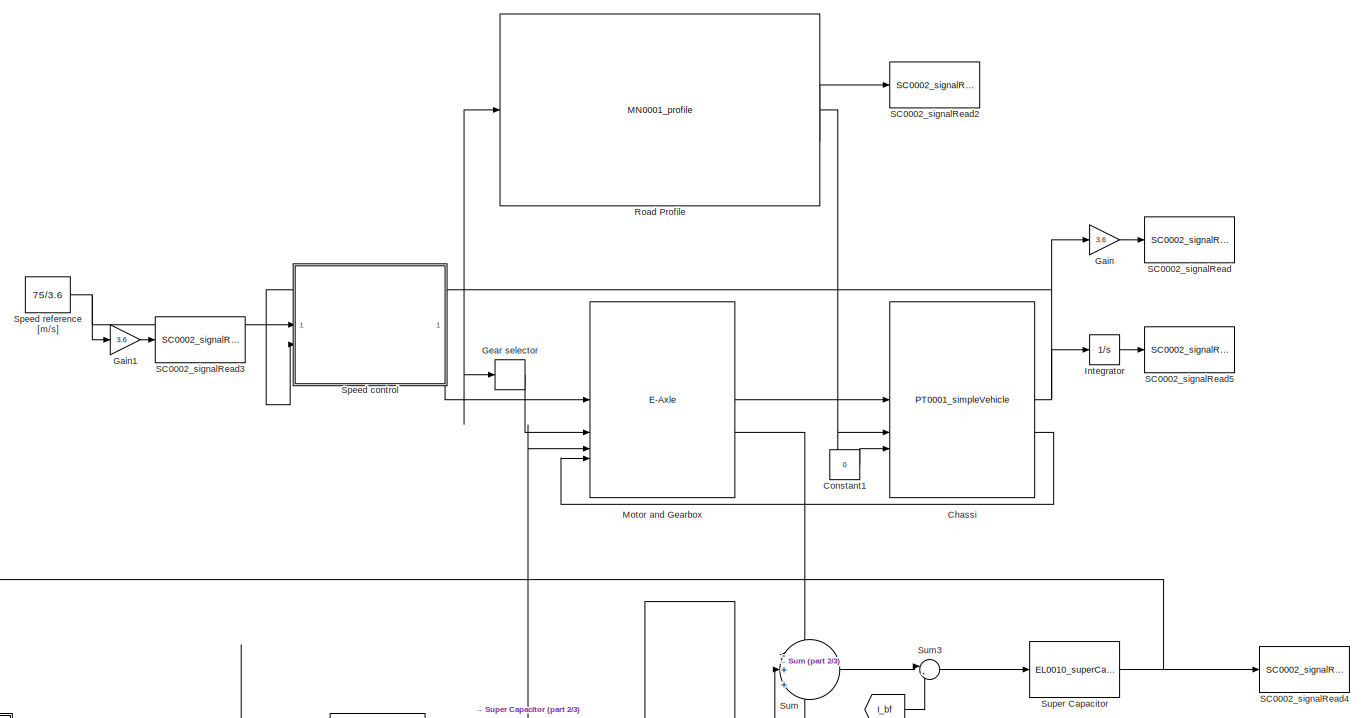
[diagram: root canvas - part 1/3, full width, top band]
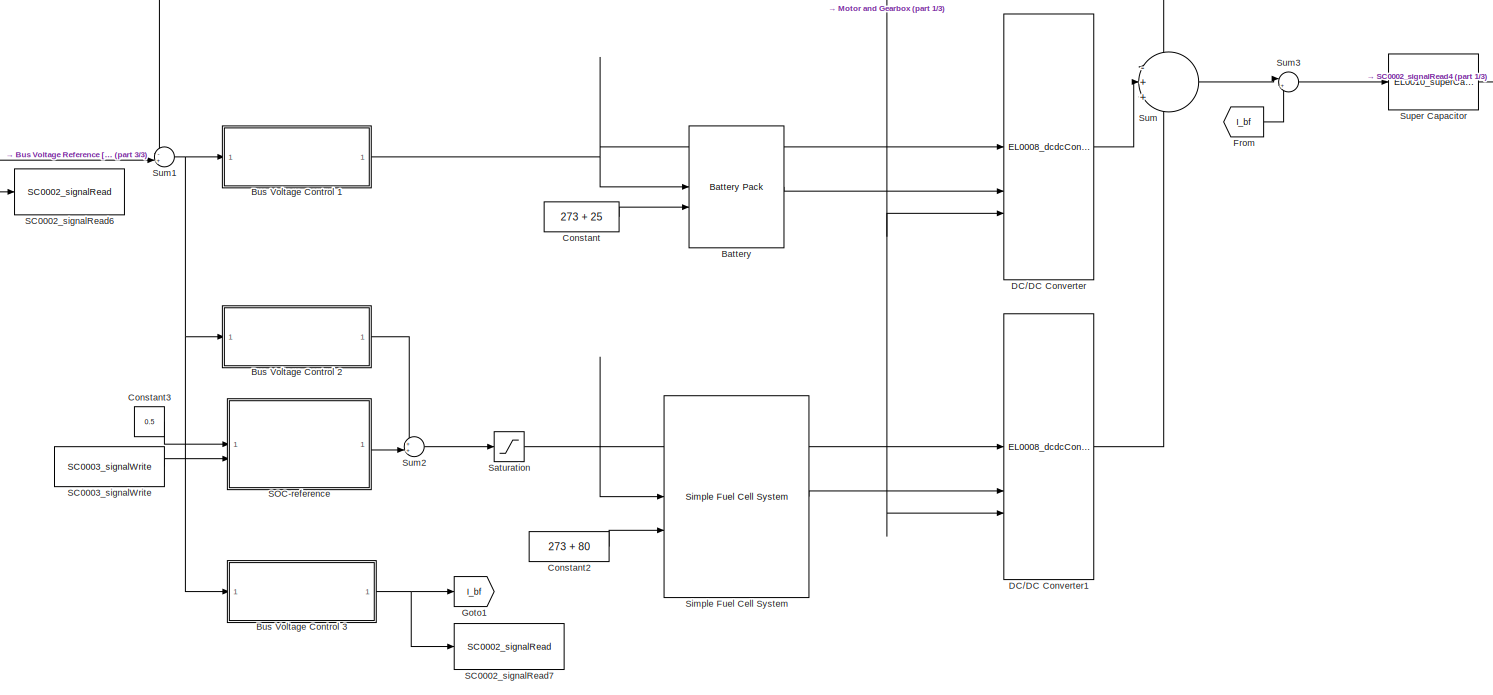
[diagram: root canvas - part 2/3, full width, bottom band]
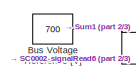
[diagram: root canvas - part 3/3, middle left region]
MODEL slx_fabcd3879b46
KIND model
CONFIG AbsTol = auto
CONFIG EnableMultiTasking = off
CONFIG FixedStep = auto
CONFIG MaxStep = 1e-1
CONFIG MinStep = auto
CONFIG RelTol = 1e-4
CONFIG SampleTimeConstraint = Unconstrained
CONFIG SolverName = ode23tb
CONFIG StartTime = 0.0
CONFIG StopTime = 100e3
BLOCK [Reference] Battery  REF=component_lib/Battery Pack  (lib defined in slx_7b23c5cf3aa6)
  SourceBlock = component_lib/Battery Pack
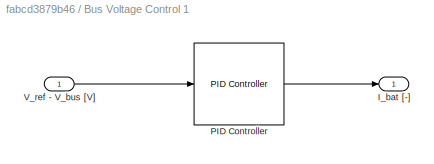
BLOCK [SubSystem] Bus Voltage Control 1
BLOCK [Outport] Bus Voltage Control 1/I_bat [-]
BLOCK [Reference] Bus Voltage Control 1/PID Controller  REF=slpidlib/PID Controller
  SourceBlock = slpidlib/PID Controller
  SourceType = PID 1dof
BLOCK [Inport] Bus Voltage Control 1/V_ref - V_bus [V]
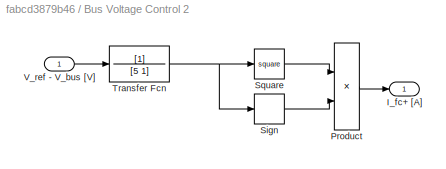
BLOCK [SubSystem] Bus Voltage Control 2 
BLOCK [Outport] Bus Voltage Control 2 /I_fc+ [A]
BLOCK [Product] Bus Voltage Control 2 /Product
BLOCK [Signum] Bus Voltage Control 2 /Sign
BLOCK [Math] Bus Voltage Control 2 /Square
  Operator = square
BLOCK [TransferFcn] Bus Voltage Control 2 /Transfer Fcn
  Denominator = [5 1]
BLOCK [Inport] Bus Voltage Control 2 /V_ref - V_bus [V]
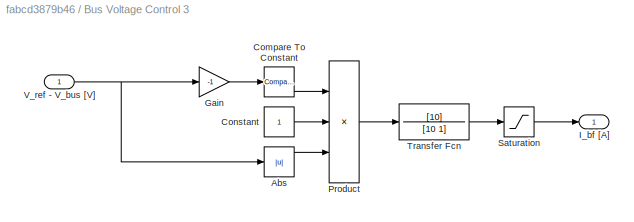
BLOCK [SubSystem] Bus Voltage Control 3
BLOCK [Abs] Bus Voltage Control 3/Abs
  SaturateOnIntegerOverflow = off
BLOCK [Reference] Bus Voltage Control 3/Compare To Constant  REF=simulink/Logic and Bit
Operations/Compare
To Constant
  SourceBlock = simulink/Logic and Bit\nOperations/Compare\nTo Constant
  SourceType = Compare To Constant
BLOCK [Constant] Bus Voltage Control 3/Constant
BLOCK [Gain] Bus Voltage Control 3/Gain
  Gain = -1
BLOCK [Outport] Bus Voltage Control 3/I_bf [A]
BLOCK [Product] Bus Voltage Control 3/Product
  Inputs = 3
BLOCK [Saturate] Bus Voltage Control 3/Saturation
  LowerLimit = 0
  UpperLimit = 1000
BLOCK [TransferFcn] Bus Voltage Control 3/Transfer Fcn
  Denominator = [10 1]
  Numerator = [10]
BLOCK [Inport] Bus Voltage Control 3/V_ref - V_bus [V]
BLOCK [Constant] Bus Voltage Reference [V]
  Value = 700
BLOCK [Reference] Chassi  REF=component_lib/Powertrain/PT0001_simpleVehicle  (lib defined in slx_7b23c5cf3aa6)
  SourceBlock = component_lib/Powertrain/PT0001_simpleVehicle
BLOCK [Constant] Constant
  Value = 273 + 25
BLOCK [Constant] Constant1
  Value = 0
BLOCK [Constant] Constant2
  Value = 273 + 80
BLOCK [Constant] Constant3
  Value = 0.5
BLOCK [Reference] DC//DC Converter  REF=component_lib/Electrochemistry/EL0008_dcdcConverter  (lib defined in slx_7b23c5cf3aa6)
  SourceBlock = component_lib/Electrochemistry/EL0008_dcdcConverter
BLOCK [Reference] DC//DC Converter1  REF=component_lib/Electrochemistry/EL0008_dcdcConverter  (lib defined in slx_7b23c5cf3aa6)
  SourceBlock = component_lib/Electrochemistry/EL0008_dcdcConverter
BLOCK [From] From
  GotoTag = I_bf
BLOCK [Gain] Gain
  Gain = 3.6
BLOCK [Gain] Gain1
  Gain = 3.6
BLOCK [Relay] Gear selector
  OffOutputValue = 3
  OffSwitchValue = 21.5
  OnOutputValue = 4
  OnSwitchValue = 22
BLOCK [Goto] Goto1
  GotoTag = I_bf
BLOCK [Integrator] Integrator
BLOCK [Reference] Motor and Gearbox  REF=component_lib/E-Axle  (lib defined in slx_7b23c5cf3aa6)
  SourceBlock = component_lib/E-Axle
BLOCK [Reference] Road Profile  REF=component_lib/Mission/MN0001_profile  (lib defined in slx_7b23c5cf3aa6)
  SourceBlock = component_lib/Mission/MN0001_profile
BLOCK [Reference] SC0002_signalRead  REF=component_lib/Data & Control/SC0002_signalRead  (lib defined in slx_7b23c5cf3aa6)
  SourceBlock = component_lib/Data & Control/SC0002_signalRead
BLOCK [Reference] SC0002_signalRead2  REF=component_lib/Data & Control/SC0002_signalRead  (lib defined in slx_7b23c5cf3aa6)
  SourceBlock = component_lib/Data & Control/SC0002_signalRead
BLOCK [Reference] SC0002_signalRead3  REF=component_lib/Data & Control/SC0002_signalRead  (lib defined in slx_7b23c5cf3aa6)
  SourceBlock = component_lib/Data & Control/SC0002_signalRead
BLOCK [Reference] SC0002_signalRead4  REF=component_lib/Data & Control/SC0002_signalRead  (lib defined in slx_7b23c5cf3aa6)
  SourceBlock = component_lib/Data & Control/SC0002_signalRead
BLOCK [Reference] SC0002_signalRead5  REF=component_lib/Data & Control/SC0002_signalRead  (lib defined in slx_7b23c5cf3aa6)
  SourceBlock = component_lib/Data & Control/SC0002_signalRead
BLOCK [Reference] SC0002_signalRead6  REF=component_lib/Data & Control/SC0002_signalRead  (lib defined in slx_7b23c5cf3aa6)
  SourceBlock = component_lib/Data & Control/SC0002_signalRead
BLOCK [Reference] SC0002_signalRead7  REF=component_lib/Data & Control/SC0002_signalRead  (lib defined in slx_7b23c5cf3aa6)
  SourceBlock = component_lib/Data & Control/SC0002_signalRead
BLOCK [Reference] SC0003_signalWrite  REF=component_lib/Data & Control/SC0003_signalWrite  (lib defined in slx_7b23c5cf3aa6)
  SourceBlock = component_lib/Data & Control/SC0003_signalWrite
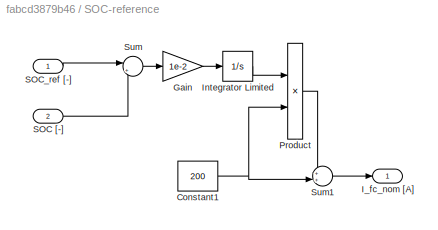
BLOCK [SubSystem] SOC-reference
BLOCK [Constant] SOC-reference/Constant1
  Value = 200
BLOCK [Gain] SOC-reference/Gain
  Gain = 1e-2
BLOCK [Outport] SOC-reference/I_fc_nom [A]
BLOCK [Integrator] SOC-reference/Integrator Limited
  LimitOutput = on
  LowerSaturationLimit = -1
  UpperSaturationLimit = 1
BLOCK [Product] SOC-reference/Product
BLOCK [Inport] SOC-reference/SOC [-]
  Port = 2
BLOCK [Inport] SOC-reference/SOC_ref [-]
BLOCK [Sum] SOC-reference/Sum
  Inputs = |+-
BLOCK [Sum] SOC-reference/Sum1
  Inputs = ++|
BLOCK [Saturate] Saturation
  LowerLimit = 20
  UpperLimit = 420
BLOCK [Reference] Simple Fuel Cell System  REF=component_lib/Simple Fuel Cell System  (lib defined in slx_7b23c5cf3aa6)
  SourceBlock = component_lib/Simple Fuel Cell System
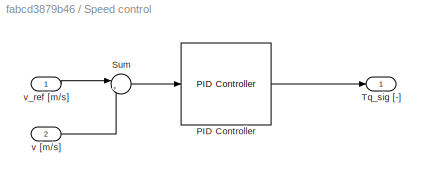
BLOCK [SubSystem] Speed control
BLOCK [Reference] Speed control/PID Controller  REF=slpidlib/PID Controller
  SourceBlock = slpidlib/PID Controller
  SourceType = PID 1dof
BLOCK [Sum] Speed control/Sum
  Inputs = |+-
BLOCK [Outport] Speed control/Tq_sig [-]
BLOCK [Inport] Speed control/v [m//s]
  Port = 2
BLOCK [Inport] Speed control/v_ref [m//s]
BLOCK [Constant] Speed reference [m//s]
  Value = 75/3.6
BLOCK [Sum] Sum
  Inputs = -++
BLOCK [Sum] Sum1
  Inputs = -+|
BLOCK [Sum] Sum2
  Inputs = ++|
BLOCK [Sum] Sum3
  Inputs = |+-
BLOCK [Reference] Super Capacitor  REF=component_lib/Electrochemistry/EL0010_superCapacitor  (lib defined in slx_7b23c5cf3aa6)
  SourceBlock = component_lib/Electrochemistry/EL0010_superCapacitor
LINE Battery:1 -> DC//DC Converter:2
LINE Bus Voltage Control 1/PID Controller:1 -> Bus Voltage Control 1/I_bat [-]:1
LINE Bus Voltage Control 1/V_ref - V_bus [V]:1 -> Bus Voltage Control 1/PID Controller:1
NET Bus Voltage Control 1:1 -> Battery:1, DC//DC Converter:1
LINE Bus Voltage Control 2 /Product:1 -> Bus Voltage Control 2 /I_fc+ [A]:1
LINE Bus Voltage Control 2 /Sign:1 -> Bus Voltage Control 2 /Product:2
LINE Bus Voltage Control 2 /Square:1 -> Bus Voltage Control 2 /Product:1
NET Bus Voltage Control 2 /Transfer Fcn:1 -> Bus Voltage Control 2 /Sign:1, Bus Voltage Control 2 /Square:1
LINE Bus Voltage Control 2 /V_ref - V_bus [V]:1 -> Bus Voltage Control 2 /Transfer Fcn:1
LINE Bus Voltage Control 2 :1 -> Sum2:1
LINE Bus Voltage Control 3/Abs:1 -> Bus Voltage Control 3/Product:3
LINE Bus Voltage Control 3/Compare To Constant:1 -> Bus Voltage Control 3/Product:1
LINE Bus Voltage Control 3/Constant:1 -> Bus Voltage Control 3/Product:2
LINE Bus Voltage Control 3/Gain:1 -> Bus Voltage Control 3/Compare To Constant:1
LINE Bus Voltage Control 3/Product:1 -> Bus Voltage Control 3/Transfer Fcn:1
LINE Bus Voltage Control 3/Saturation:1 -> Bus Voltage Control 3/I_bf [A]:1
LINE Bus Voltage Control 3/Transfer Fcn:1 -> Bus Voltage Control 3/Saturation:1
NET Bus Voltage Control 3/V_ref - V_bus [V]:1 -> Bus Voltage Control 3/Abs:1, Bus Voltage Control 3/Gain:1
NET Bus Voltage Control 3:1 -> Goto1:1, SC0002_signalRead7:1
NET Bus Voltage Reference [V]:1 -> SC0002_signalRead6:1, Sum1:2
NET Chassi:1 -> Gain:1, Gear selector:1, Integrator:1, Road Profile:1, Speed control:2
LINE Chassi:2 -> Motor and Gearbox:4
LINE Constant1:1 -> Chassi:3
LINE Constant2:1 -> Simple Fuel Cell System:2
LINE Constant3:1 -> SOC-reference:1
LINE Constant:1 -> Battery:2
LINE DC//DC Converter1:1 -> Sum:3
LINE DC//DC Converter:1 -> Sum:2
LINE From:1 -> Sum3:2
LINE Gain1:1 -> SC0002_signalRead3:1
LINE Gain:1 -> SC0002_signalRead:1
LINE Gear selector:1 -> Motor and Gearbox:2
LINE Integrator:1 -> SC0002_signalRead5:1
LINE Motor and Gearbox:1 -> Chassi:1
LINE Motor and Gearbox:2 -> Sum:1
LINE Road Profile:1 -> Chassi:2
LINE Road Profile:2 -> SC0002_signalRead2:1
LINE SC0003_signalWrite:1 -> SOC-reference:2
NET SOC-reference/Constant1:1 -> SOC-reference/Product:2, SOC-reference/Sum1:2
LINE SOC-reference/Gain:1 -> SOC-reference/Integrator Limited:1
LINE SOC-reference/Integrator Limited:1 -> SOC-reference/Product:1
LINE SOC-reference/Product:1 -> SOC-reference/Sum1:1
LINE SOC-reference/SOC [-]:1 -> SOC-reference/Sum:2
LINE SOC-reference/SOC_ref [-]:1 -> SOC-reference/Sum:1
LINE SOC-reference/Sum1:1 -> SOC-reference/I_fc_nom [A]:1
LINE SOC-reference/Sum:1 -> SOC-reference/Gain:1
LINE SOC-reference:1 -> Sum2:2
NET Saturation:1 -> DC//DC Converter1:1, Simple Fuel Cell System:1
LINE Simple Fuel Cell System:1 -> DC//DC Converter1:2
LINE Speed control/PID Controller:1 -> Speed control/Tq_sig [-]:1
LINE Speed control/Sum:1 -> Speed control/PID Controller:1
LINE Speed control/v [m//s]:1 -> Speed control/Sum:2
LINE Speed control/v_ref [m//s]:1 -> Speed control/Sum:1
LINE Speed control:1 -> Motor and Gearbox:1
NET Speed reference [m//s]:1 -> Gain1:1, Speed control:1
NET Sum1:1 -> Bus Voltage Control 1:1, Bus Voltage Control 2 :1, Bus Voltage Control 3:1
LINE Sum2:1 -> Saturation:1
LINE Sum3:1 -> Super Capacitor:1
LINE Sum:1 -> Sum3:1
NET Super Capacitor:1 -> DC//DC Converter1:3, DC//DC Converter:3, Motor and Gearbox:3, SC0002_signalRead4:1, Sum1:1
note: NET lines group one-source signal fan-out (src -> all destinations, sorted); 1:1 wires keep LINE
